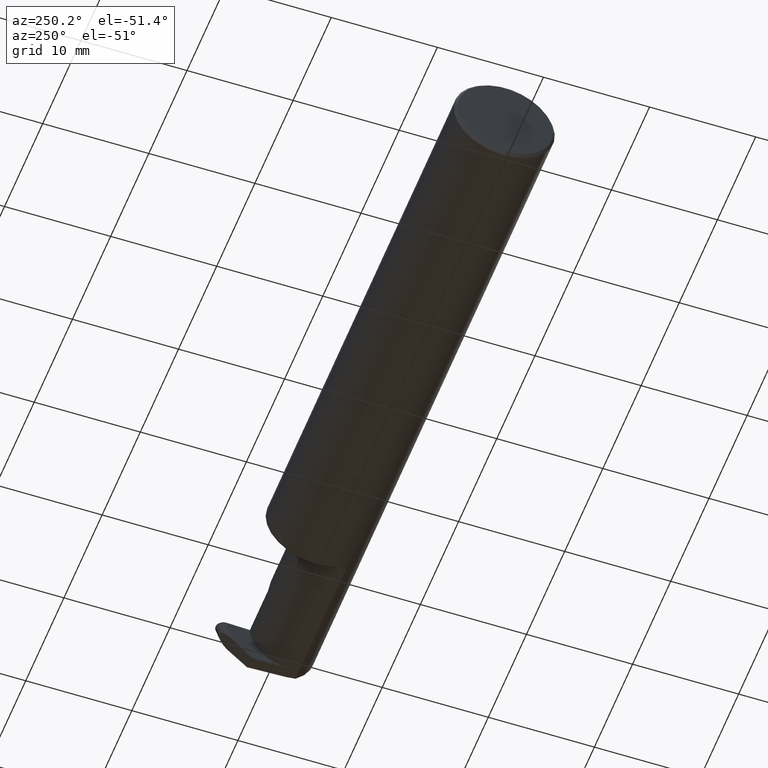
[diagram: clean part render]
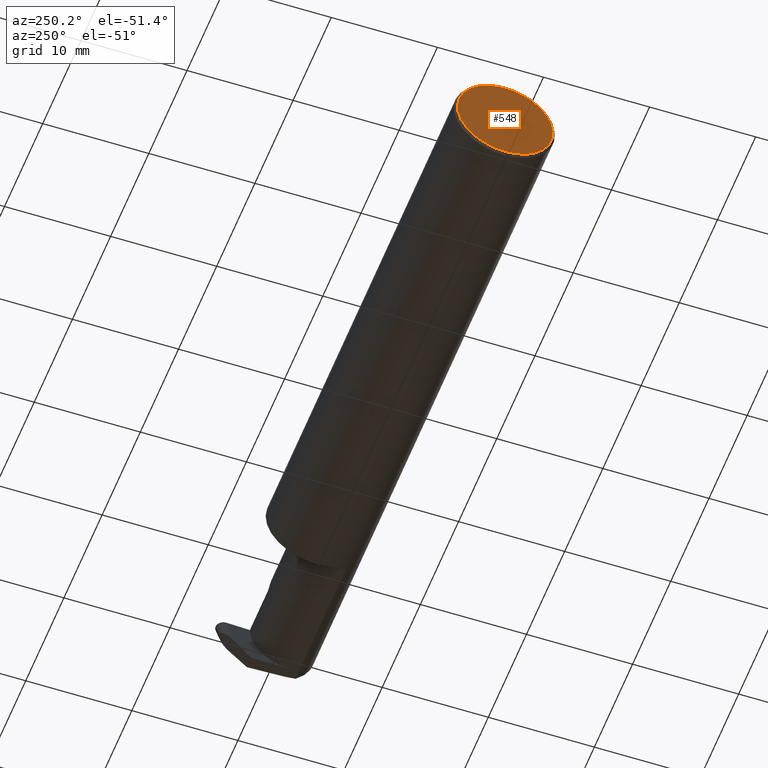
[diagram: same view with one face highlighted and labeled with its STEP entity id]
A machine part, auxiliary view. The second image highlights one B-rep face of the part: STEP entity #548.
In plain terms, the highlighted planar face has unit normal (1, 0, 0).
Its self-contained STEP definition (entity closure, byte-faithful):
#42 = DIRECTION ( 'NONE',  ( 1.000000000000000000, 0.000000000000000000, 0.000000000000000000 ) ) ;
#55 = DIRECTION ( 'NONE',  ( 0.000000000000000000, 0.000000000000000000, -1.000000000000000000 ) ) ;
#78 = CARTESIAN_POINT ( 'NONE',  ( 0.000000000000000000, 0.000000000000000000, -0.1773500000000005072 ) ) ;
#86 = AXIS2_PLACEMENT_3D ( 'NONE', #226, #338, #442 ) ;
#130 = CARTESIAN_POINT ( 'NONE',  ( 0.000000000000000000, 0.01880691362239451242, 0.1763499999999999235 ) ) ;
#158 = CARTESIAN_POINT ( 'NONE',  ( 0.000000000000000000, -0.01880691362239451242, 0.1763499999999999235 ) ) ;
#162 = ORIENTED_EDGE ( 'NONE', *, *, #281, .T. ) ;
#170 = VECTOR ( 'NONE', #325, 39.37007874015748143 ) ;
#214 = DIRECTION ( 'NONE',  ( -1.000000000000000000, -0.000000000000000000, -0.000000000000000000 ) ) ;
#226 = CARTESIAN_POINT ( 'NONE',  ( 0.000000000000000000, 0.000000000000000000, 0.000000000000000000 ) ) ;
#268 = AXIS2_PLACEMENT_3D ( 'NONE', #386, #214, #55 ) ;
#281 = EDGE_CURVE ( 'NONE', #296, #579, #600, .T. ) ;
#295 = EDGE_CURVE ( 'NONE', #633, #296, #576, .T. ) ;
#296 = VERTEX_POINT ( 'NONE', #158 ) ;
#305 = PLANE ( 'NONE',  #403 ) ;
#325 = DIRECTION ( 'NONE',  ( -0.000000000000000000, 1.000000000000000000, -0.000000000000000000 ) ) ;
#338 = DIRECTION ( 'NONE',  ( -1.000000000000000000, -0.000000000000000000, -0.000000000000000000 ) ) ;
#386 = CARTESIAN_POINT ( 'NONE',  ( 0.000000000000000000, 0.000000000000000000, 0.000000000000000000 ) ) ;
#403 = AXIS2_PLACEMENT_3D ( 'NONE', #688, #42, #516 ) ;
#415 = ORIENTED_EDGE ( 'NONE', *, *, #513, .T. ) ;
#442 = DIRECTION ( 'NONE',  ( 0.000000000000000000, 0.000000000000000000, -1.000000000000000000 ) ) ;
#513 = EDGE_CURVE ( 'NONE', #579, #633, #708, .T. ) ;
#516 = DIRECTION ( 'NONE',  ( 0.000000000000000000, 0.000000000000000000, -1.000000000000000000 ) ) ;
#548 = ADVANCED_FACE ( 'NONE', ( #692 ), #305, .F. ) ;
#550 = EDGE_LOOP ( 'NONE', ( #162, #415, #662 ) ) ;
#576 = CIRCLE ( 'NONE', #268, 0.1773500000000005072 ) ;
#579 = VERTEX_POINT ( 'NONE', #130 ) ;
#600 = LINE ( 'NONE', #605, #170 ) ;
#605 = CARTESIAN_POINT ( 'NONE',  ( 0.000000000000000000, 0.1873499999999998500, 0.1763499999999999235 ) ) ;
#633 = VERTEX_POINT ( 'NONE', #78 ) ;
#662 = ORIENTED_EDGE ( 'NONE', *, *, #295, .T. ) ;
#688 = CARTESIAN_POINT ( 'NONE',  ( 0.000000000000000000, 0.000000000000000000, 0.000000000000000000 ) ) ;
#692 = FACE_OUTER_BOUND ( 'NONE', #550, .T. ) ;
#708 = CIRCLE ( 'NONE', #86, 0.1773500000000005072 ) ;